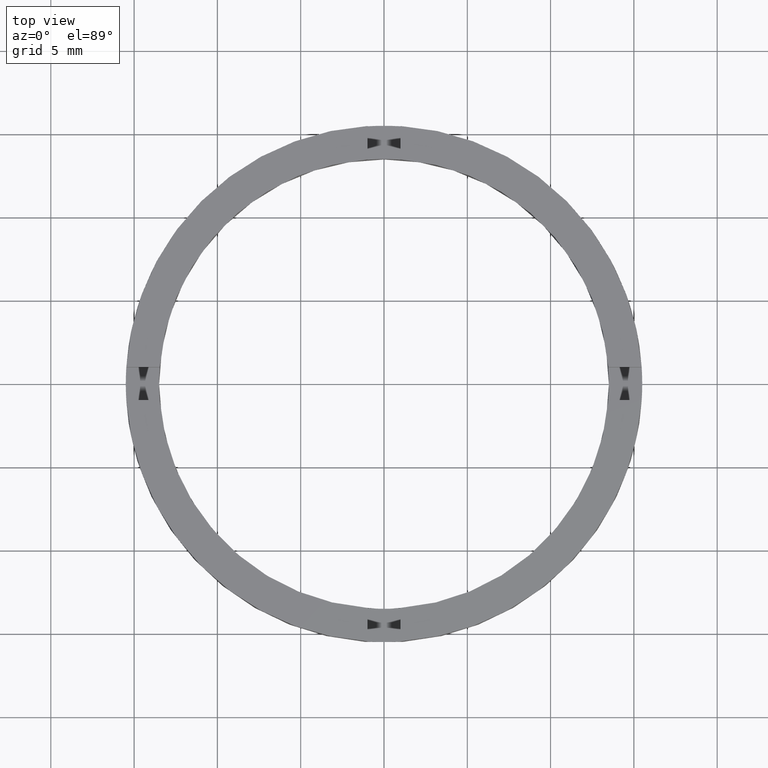
[diagram: clean part render]
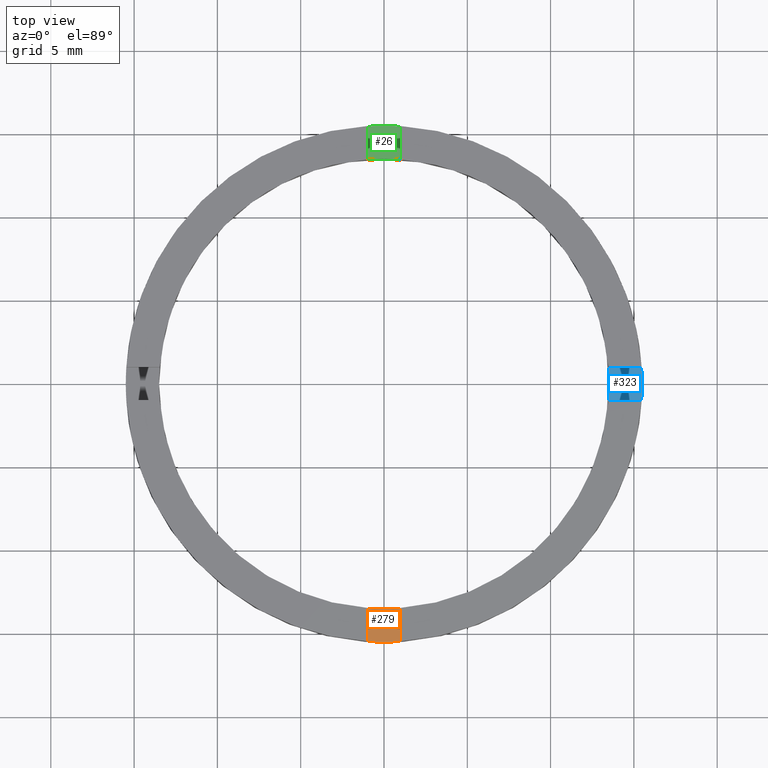
[diagram: same view with three faces highlighted in distinct colors, each labeled with its STEP entity id]
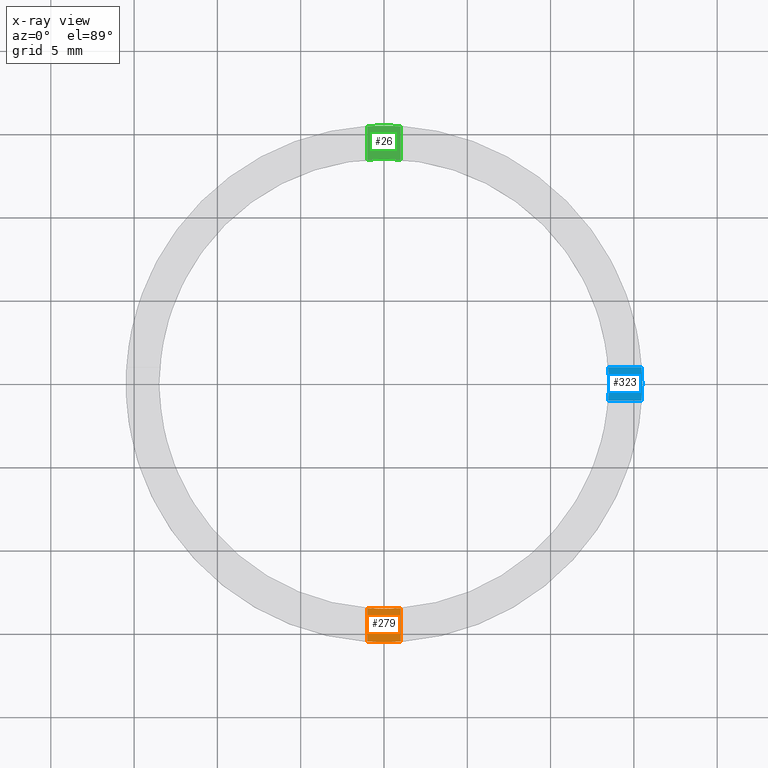
[diagram: x-ray of the same camera — body ghosted, the three highlighted faces saturated]
A machine part, top view with three faces highlighted in distinct colors.
The next image is the same camera in x-ray (body ghosted, the three faces saturated) — at least one of them is partly hidden behind the body in this view.
Their STEP definitions:

[orange] entity #279 — the highlighted planar face has unit normal (-0, 0, 1).
#7 = VECTOR ( 'NONE', #519, 1000.000000000000000 ) ;
#40 = DIRECTION ( 'NONE',  ( -0.000000000000000000, 0.000000000000000000, 1.000000000000000000 ) ) ;
#42 = PLANE ( 'NONE',  #78 ) ;
#61 = CARTESIAN_POINT ( 'NONE',  ( 0.000000000000000000, 0.000000000000000000, 1.500000000000000000 ) ) ;
#67 = VERTEX_POINT ( 'NONE', #350 ) ;
#71 = EDGE_CURVE ( 'NONE', #177, #67, #394, .T. ) ;
#78 = AXIS2_PLACEMENT_3D ( 'NONE', #736, #40, #497 ) ;
#93 = ORIENTED_EDGE ( 'NONE', *, *, #441, .T. ) ;
#95 = ORIENTED_EDGE ( 'NONE', *, *, #71, .T. ) ;
#121 = VECTOR ( 'NONE', #299, 1000.000000000000000 ) ;
#151 = DIRECTION ( 'NONE',  ( -0.000000000000000000, 0.000000000000000000, 1.000000000000000000 ) ) ;
#165 = ORIENTED_EDGE ( 'NONE', *, *, #194, .T. ) ;
#177 = VERTEX_POINT ( 'NONE', #694 ) ;
#194 = EDGE_CURVE ( 'NONE', #632, #456, #530, .T. ) ;
#227 = DIRECTION ( 'NONE',  ( 1.000000000000000000, 0.000000000000000000, 0.000000000000000000 ) ) ;
#255 = FACE_OUTER_BOUND ( 'NONE', #692, .T. ) ;
#279 = ADVANCED_FACE ( 'NONE', ( #255 ), #42, .T. ) ;
#299 = DIRECTION ( 'NONE',  ( 1.301042606982605321E-16, -1.000000000000000000, 0.000000000000000000 ) ) ;
#322 = AXIS2_PLACEMENT_3D ( 'NONE', #61, #151, #227 ) ;
#325 = CARTESIAN_POINT ( 'NONE',  ( 0.9999999999998369082, -13.46291201783627045, 1.500000000000000000 ) ) ;
#350 = CARTESIAN_POINT ( 'NONE',  ( -1.000000000000162759, -15.46770829825800853, 1.500000000000000000 ) ) ;
#361 = ORIENTED_EDGE ( 'NONE', *, *, #538, .F. ) ;
#383 = CARTESIAN_POINT ( 'NONE',  ( 0.9999999999998359090, -5.500000000000180300, 1.500000000000000000 ) ) ;
#394 = LINE ( 'NONE', #782, #121 ) ;
#441 = EDGE_CURVE ( 'NONE', #67, #632, #735, .T. ) ;
#456 = VERTEX_POINT ( 'NONE', #325 ) ;
#465 = DIRECTION ( 'NONE',  ( -0.000000000000000000, 0.000000000000000000, 1.000000000000000000 ) ) ;
#497 = DIRECTION ( 'NONE',  ( 1.000000000000000000, 0.000000000000000000, 0.000000000000000000 ) ) ;
#519 = DIRECTION ( 'NONE',  ( -1.301042606982605321E-16, 1.000000000000000000, -0.000000000000000000 ) ) ;
#530 = LINE ( 'NONE', #383, #7 ) ;
#538 = EDGE_CURVE ( 'NONE', #177, #456, #687, .T. ) ;
#539 = CARTESIAN_POINT ( 'NONE',  ( 0.9999999999998371303, -15.46770829825802984, 1.500000000000000000 ) ) ;
#555 = CARTESIAN_POINT ( 'NONE',  ( 0.000000000000000000, 0.000000000000000000, 1.500000000000000000 ) ) ;
#599 = AXIS2_PLACEMENT_3D ( 'NONE', #555, #465, #696 ) ;
#632 = VERTEX_POINT ( 'NONE', #539 ) ;
#687 = CIRCLE ( 'NONE', #599, 13.50000000000000000 ) ;
#692 = EDGE_LOOP ( 'NONE', ( #93, #165, #361, #95 ) ) ;
#694 = CARTESIAN_POINT ( 'NONE',  ( -1.000000000000162981, -13.46291201783624736, 1.500000000000000000 ) ) ;
#696 = DIRECTION ( 'NONE',  ( 1.000000000000000000, 0.000000000000000000, 0.000000000000000000 ) ) ;
#735 = CIRCLE ( 'NONE', #322, 15.50000000000000000 ) ;
#736 = CARTESIAN_POINT ( 'NONE',  ( 0.000000000000000000, 0.000000000000000000, 1.500000000000000000 ) ) ;
#782 = CARTESIAN_POINT ( 'NONE',  ( -1.000000000000164091, -5.500000000000180300, 1.500000000000000000 ) ) ;

[blue] entity #323 — the highlighted planar face has unit normal (0, 0, 1).
#27 = DIRECTION ( 'NONE',  ( 1.000000000000000000, 4.336808689942017736E-17, 0.000000000000000000 ) ) ;
#45 = DIRECTION ( 'NONE',  ( -1.000000000000000000, -4.336808689942017736E-17, -0.000000000000000000 ) ) ;
#65 = DIRECTION ( 'NONE',  ( 1.000000000000000000, 0.000000000000000000, -0.000000000000000000 ) ) ;
#120 = DIRECTION ( 'NONE',  ( 0.000000000000000000, 0.000000000000000000, 1.000000000000000000 ) ) ;
#127 = DIRECTION ( 'NONE',  ( 0.000000000000000000, 0.000000000000000000, 1.000000000000000000 ) ) ;
#145 = CARTESIAN_POINT ( 'NONE',  ( 13.50000000000000000, 1.653273178848926867E-15, 1.500000000000000000 ) ) ;
#147 = VERTEX_POINT ( 'NONE', #369 ) ;
#152 = ORIENTED_EDGE ( 'NONE', *, *, #720, .T. ) ;
#184 = VERTEX_POINT ( 'NONE', #145 ) ;
#186 = VERTEX_POINT ( 'NONE', #390 ) ;
#187 = VERTEX_POINT ( 'NONE', #283 ) ;
#196 = DIRECTION ( 'NONE',  ( 0.000000000000000000, 0.000000000000000000, 1.000000000000000000 ) ) ;
#203 = EDGE_CURVE ( 'NONE', #187, #626, #235, .T. ) ;
#211 = CARTESIAN_POINT ( 'NONE',  ( 5.499999999999994671, -1.000000000000159650, 1.500000000000000000 ) ) ;
#216 = EDGE_CURVE ( 'NONE', #184, #338, #239, .T. ) ;
#234 = CARTESIAN_POINT ( 'NONE',  ( 13.46291201783627045, 0.9999999999998409050, 1.500000000000000000 ) ) ;
#235 = LINE ( 'NONE', #211, #744 ) ;
#239 = CIRCLE ( 'NONE', #725, 13.50000000000000000 ) ;
#262 = DIRECTION ( 'NONE',  ( 1.000000000000000000, 0.000000000000000000, 0.000000000000000000 ) ) ;
#283 = CARTESIAN_POINT ( 'NONE',  ( 13.46291201783624736, -1.000000000000159206, 1.500000000000000000 ) ) ;
#323 = ADVANCED_FACE ( 'NONE', ( #513 ), #418, .T. ) ;
#331 = AXIS2_PLACEMENT_3D ( 'NONE', #468, #127, #509 ) ;
#338 = VERTEX_POINT ( 'NONE', #234 ) ;
#339 = DIRECTION ( 'NONE',  ( 0.000000000000000000, 0.000000000000000000, 1.000000000000000000 ) ) ;
#362 = CARTESIAN_POINT ( 'NONE',  ( 0.000000000000000000, 0.000000000000000000, 1.500000000000000000 ) ) ;
#369 = CARTESIAN_POINT ( 'NONE',  ( 15.50000000000000000, 1.898202538678397557E-15, 1.500000000000000000 ) ) ;
#390 = CARTESIAN_POINT ( 'NONE',  ( 15.46770829825802984, 0.9999999999998409050, 1.500000000000000000 ) ) ;
#416 = EDGE_LOOP ( 'NONE', ( #152, #443, #665, #660, #598, #444 ) ) ;
#418 = PLANE ( 'NONE',  #569 ) ;
#425 = CIRCLE ( 'NONE', #331, 15.50000000000000000 ) ;
#442 = DIRECTION ( 'NONE',  ( 1.000000000000000000, 0.000000000000000000, 0.000000000000000000 ) ) ;
#443 = ORIENTED_EDGE ( 'NONE', *, *, #753, .T. ) ;
#444 = ORIENTED_EDGE ( 'NONE', *, *, #203, .T. ) ;
#460 = DIRECTION ( 'NONE',  ( 0.000000000000000000, 0.000000000000000000, 1.000000000000000000 ) ) ;
#468 = CARTESIAN_POINT ( 'NONE',  ( 0.000000000000000000, 0.000000000000000000, 1.500000000000000000 ) ) ;
#471 = CIRCLE ( 'NONE', #703, 15.50000000000000000 ) ;
#475 = EDGE_CURVE ( 'NONE', #187, #184, #733, .T. ) ;
#477 = VECTOR ( 'NONE', #45, 1000.000000000000000 ) ;
#494 = CARTESIAN_POINT ( 'NONE',  ( 15.46770829825800853, -1.000000000000159206, 1.500000000000000000 ) ) ;
#509 = DIRECTION ( 'NONE',  ( 1.000000000000000000, 0.000000000000000000, 0.000000000000000000 ) ) ;
#513 = FACE_OUTER_BOUND ( 'NONE', #416, .T. ) ;
#536 = CARTESIAN_POINT ( 'NONE',  ( 0.000000000000000000, 0.000000000000000000, 1.500000000000000000 ) ) ;
#541 = CARTESIAN_POINT ( 'NONE',  ( 5.499999999999994671, 0.9999999999998404610, 1.500000000000000000 ) ) ;
#550 = DIRECTION ( 'NONE',  ( 1.000000000000000000, 0.000000000000000000, 0.000000000000000000 ) ) ;
#564 = CARTESIAN_POINT ( 'NONE',  ( 0.000000000000000000, 0.000000000000000000, 1.500000000000000000 ) ) ;
#569 = AXIS2_PLACEMENT_3D ( 'NONE', #536, #196, #65 ) ;
#598 = ORIENTED_EDGE ( 'NONE', *, *, #475, .F. ) ;
#626 = VERTEX_POINT ( 'NONE', #494 ) ;
#660 = ORIENTED_EDGE ( 'NONE', *, *, #216, .F. ) ;
#665 = ORIENTED_EDGE ( 'NONE', *, *, #729, .T. ) ;
#695 = AXIS2_PLACEMENT_3D ( 'NONE', #564, #120, #262 ) ;
#700 = LINE ( 'NONE', #541, #477 ) ;
#703 = AXIS2_PLACEMENT_3D ( 'NONE', #743, #339, #442 ) ;
#720 = EDGE_CURVE ( 'NONE', #626, #147, #471, .T. ) ;
#725 = AXIS2_PLACEMENT_3D ( 'NONE', #362, #460, #550 ) ;
#729 = EDGE_CURVE ( 'NONE', #186, #338, #700, .T. ) ;
#733 = CIRCLE ( 'NONE', #695, 13.50000000000000000 ) ;
#743 = CARTESIAN_POINT ( 'NONE',  ( 0.000000000000000000, 0.000000000000000000, 1.500000000000000000 ) ) ;
#744 = VECTOR ( 'NONE', #27, 1000.000000000000000 ) ;
#753 = EDGE_CURVE ( 'NONE', #147, #186, #425, .T. ) ;

[green] entity #26 — the highlighted planar face has unit normal (0, -0, 1).
#1 = LINE ( 'NONE', #296, #528 ) ;
#10 = DIRECTION ( 'NONE',  ( -0.000000000000000000, -1.000000000000000000, -0.000000000000000000 ) ) ;
#14 = AXIS2_PLACEMENT_3D ( 'NONE', #765, #489, #481 ) ;
#26 = ADVANCED_FACE ( 'NONE', ( #112 ), #207, .T. ) ;
#54 = CARTESIAN_POINT ( 'NONE',  ( 0.000000000000000000, 0.000000000000000000, 1.500000000000000000 ) ) ;
#86 = VERTEX_POINT ( 'NONE', #197 ) ;
#94 = DIRECTION ( 'NONE',  ( 0.000000000000000000, 1.000000000000000000, 0.000000000000000000 ) ) ;
#100 = EDGE_CURVE ( 'NONE', #620, #453, #1, .T. ) ;
#112 = FACE_OUTER_BOUND ( 'NONE', #436, .T. ) ;
#197 = CARTESIAN_POINT ( 'NONE',  ( -1.000000000000024869, 15.46770829825801741, 1.500000000000000000 ) ) ;
#207 = PLANE ( 'NONE',  #334 ) ;
#212 = DIRECTION ( 'NONE',  ( 1.000000000000000000, 0.000000000000000000, 0.000000000000000000 ) ) ;
#213 = CARTESIAN_POINT ( 'NONE',  ( -1.000000000000024869, 13.46291201783625802, 1.500000000000000000 ) ) ;
#215 = CARTESIAN_POINT ( 'NONE',  ( 0.000000000000000000, 0.000000000000000000, 1.500000000000000000 ) ) ;
#273 = DIRECTION ( 'NONE',  ( 0.000000000000000000, -0.000000000000000000, 1.000000000000000000 ) ) ;
#275 = EDGE_CURVE ( 'NONE', #86, #363, #774, .T. ) ;
#296 = CARTESIAN_POINT ( 'NONE',  ( 0.9999999999999751310, 5.500000000000000000, 1.500000000000000000 ) ) ;
#304 = EDGE_CURVE ( 'NONE', #453, #86, #501, .T. ) ;
#334 = AXIS2_PLACEMENT_3D ( 'NONE', #215, #357, #587 ) ;
#336 = ORIENTED_EDGE ( 'NONE', *, *, #100, .T. ) ;
#357 = DIRECTION ( 'NONE',  ( 0.000000000000000000, -0.000000000000000000, 1.000000000000000000 ) ) ;
#363 = VERTEX_POINT ( 'NONE', #213 ) ;
#381 = ORIENTED_EDGE ( 'NONE', *, *, #304, .T. ) ;
#384 = ORIENTED_EDGE ( 'NONE', *, *, #492, .F. ) ;
#426 = CIRCLE ( 'NONE', #514, 13.50000000000000000 ) ;
#435 = ORIENTED_EDGE ( 'NONE', *, *, #275, .T. ) ;
#436 = EDGE_LOOP ( 'NONE', ( #381, #435, #384, #336 ) ) ;
#453 = VERTEX_POINT ( 'NONE', #586 ) ;
#481 = DIRECTION ( 'NONE',  ( 1.000000000000000000, 0.000000000000000000, 0.000000000000000000 ) ) ;
#489 = DIRECTION ( 'NONE',  ( 0.000000000000000000, -0.000000000000000000, 1.000000000000000000 ) ) ;
#492 = EDGE_CURVE ( 'NONE', #620, #363, #426, .T. ) ;
#501 = CIRCLE ( 'NONE', #14, 15.50000000000000000 ) ;
#514 = AXIS2_PLACEMENT_3D ( 'NONE', #54, #273, #212 ) ;
#528 = VECTOR ( 'NONE', #94, 1000.000000000000000 ) ;
#545 = CARTESIAN_POINT ( 'NONE',  ( 0.9999999999999751310, 13.46291201783626335, 1.500000000000000000 ) ) ;
#586 = CARTESIAN_POINT ( 'NONE',  ( 0.9999999999999751310, 15.46770829825802096, 1.500000000000000000 ) ) ;
#587 = DIRECTION ( 'NONE',  ( 1.000000000000000000, 0.000000000000000000, -0.000000000000000000 ) ) ;
#620 = VERTEX_POINT ( 'NONE', #545 ) ;
#742 = CARTESIAN_POINT ( 'NONE',  ( -1.000000000000024869, 5.500000000000000000, 1.500000000000000000 ) ) ;
#765 = CARTESIAN_POINT ( 'NONE',  ( 0.000000000000000000, 0.000000000000000000, 1.500000000000000000 ) ) ;
#774 = LINE ( 'NONE', #742, #778 ) ;
#778 = VECTOR ( 'NONE', #10, 1000.000000000000000 ) ;